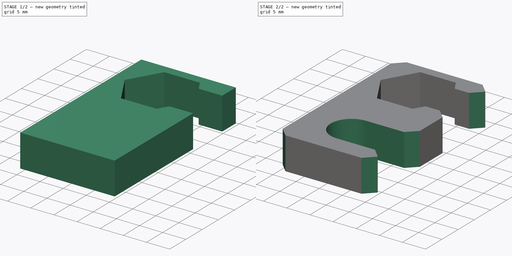
[diagram: build sequence overview — one tinted view per stage of 2, left to right]
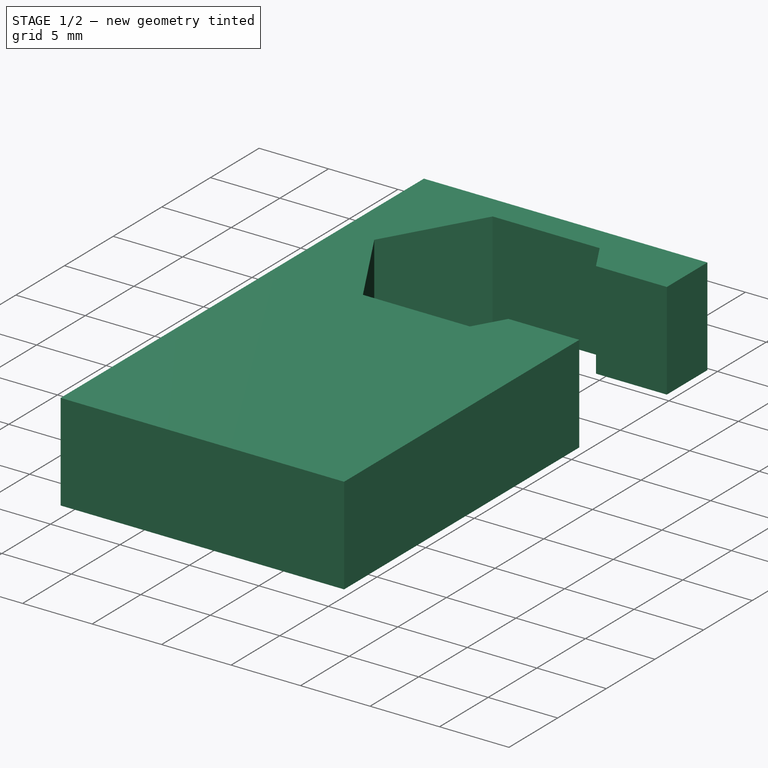
[diagram: stage 1 of 2 — iso view after this stage's code; geometry added in this stage tinted green]
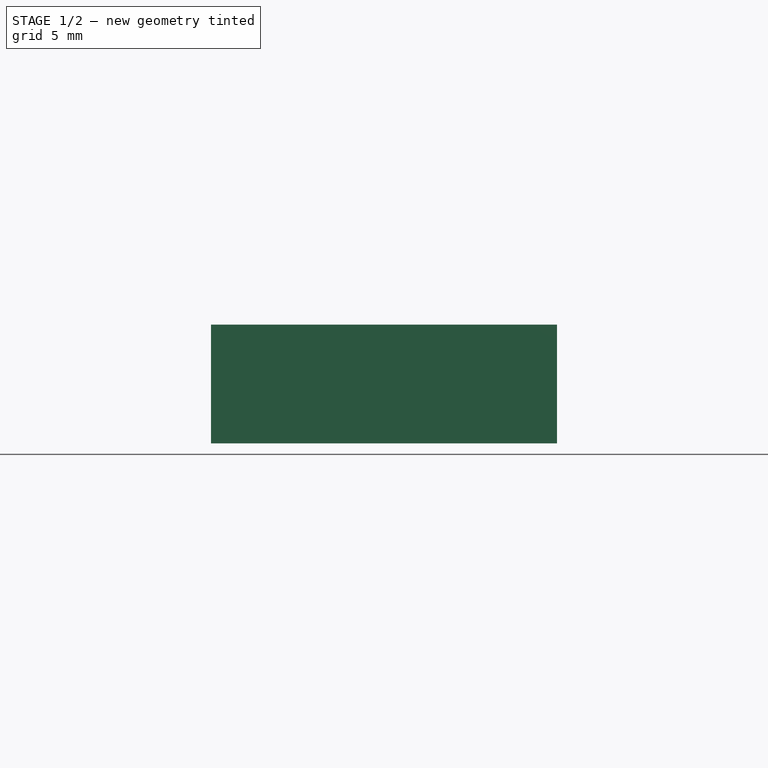
[diagram: stage 1 of 2 — front view after this stage's code; geometry added in this stage tinted green]
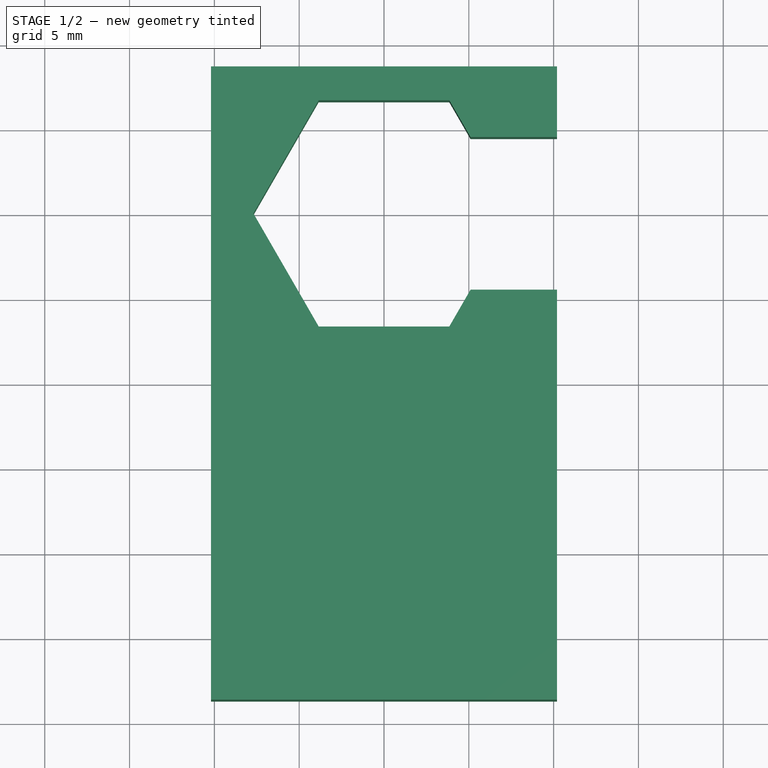
[diagram: stage 1 of 2 — top view after this stage's code; geometry added in this stage tinted green]
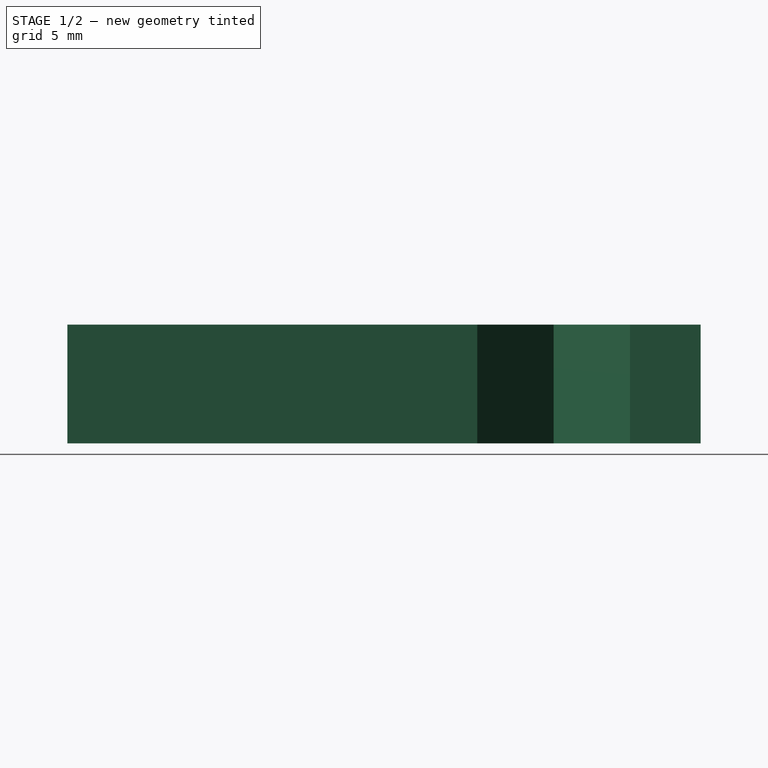
[diagram: stage 1 of 2 — right view after this stage's code; geometry added in this stage tinted green]
FCSTD DOCUMENT  (FreeCAD 0.15R4671 (Git))
Label: Y_axis_single_nut_blocker
License: CreativeCommons Attribution-ShareAlike
LicenseURL: http://creativecommons.org/licenses/by-sa/4.0/
objects: Sketcher::SketchObject×2, PartDesign::Pad×1, PartDesign::Pocket×1, PartDesign::Mirrored×1, PartDesign::Chamfer×1
note: 8 computed .brp shape members not serialized (recipe doc carries the construction recipe); baked Part::Feature solids carry a one-line shape summary decoded from their .brp

FEATURE [Sketcher::SketchObject] Sketch
  sketch-geometry (11):
    g0: LineSegment StartX=-10.2 StartY=18.6684 StartZ=0 EndX=10.2 EndY=18.6684 EndZ=0
    g1: LineSegment StartX=10.2 StartY=18.6684 StartZ=0 EndX=10.2 EndY=-18.6684 EndZ=0
    g2: LineSegment StartX=10.2 StartY=-18.6684 StartZ=0 EndX=-10.2 EndY=-18.6684 EndZ=0
    g3: LineSegment StartX=-10.2 StartY=-18.6684 StartZ=0 EndX=-10.2 EndY=18.6684 EndZ=0
    g4: LineSegment StartX=3.85 StartY=3.3316 StartZ=0 EndX=7.7 EndY=10 EndZ=0
    g5: LineSegment StartX=7.7 StartY=10 StartZ=0 EndX=3.85 EndY=16.6684 EndZ=0
    g6: LineSegment StartX=3.85 StartY=16.6684 StartZ=0 EndX=-3.85 EndY=16.6684 EndZ=0
    g7: LineSegment StartX=-3.85 StartY=16.6684 StartZ=0 EndX=-7.7 EndY=10 EndZ=0
    g8: LineSegment StartX=-7.7 StartY=10 StartZ=0 EndX=-3.85 EndY=3.3316 EndZ=0
    g9: LineSegment StartX=-3.85 StartY=3.3316 StartZ=0 EndX=3.85 EndY=3.3316 EndZ=0
    g10: Circle [constr] CenterX=0 CenterY=10 CenterZ=0 NormalX=0 NormalY=0 NormalZ=1 Radius=7.7
  constraints (28):
    c: Coincident(g0,g1)
    c: Coincident(g1,g2)
    c: Coincident(g2,g3)
    c: Coincident(g3,g0)
    c: Horizontal(g0)
    c: Horizontal(g2)
    c: Vertical(g1)
    c: Vertical(g3)
    c: Symmetric(g0,g1,g-1)
    c: Coincident(g4,g5)
    c: Coincident(g5,g6)
    c: Coincident(g6,g7)
    c: Coincident(g7,g8)
    c: Coincident(g8,g9)
    c: Coincident(g9,g4)
    c: Equal(g4, g5-g9) x5
    c: PointOnObject(g4,g10)
    c: PointOnObject(g5,g10)
    c: PointOnObject(g6,g10)
    c: PointOnObject(g7,g10)
    c: PointOnObject(g8,g10)
    c: PointOnObject(g9,g10)
    c: Horizontal(g6)
    c: PointOnObject(g10,g-2)
    c: DistanceY(g-1,g10) = 10
    c: DistanceX(g7,g10) = 7.7
    c: DistanceX(g7,g0) = -2.5
    c: DistanceY(g6,g0) = 2
FEATURE [PartDesign::Pad] Pad
  Length = 7
  Length2 = 100
  Sketch = -> Sketch
  Type = 0
FEATURE [Sketcher::SketchObject] Sketch001
  ExternalGeometry = -> [Pad]
  Placement = pos=(0,0,7) rot=(0,0,1;0rad)
  Support = -> Pad [Face12]
  sketch-geometry (5):
    g0: LineSegment [constr] StartX=0 StartY=10 StartZ=0 EndX=14 EndY=10 EndZ=0
    g1: LineSegment StartX=0 StartY=14.5 StartZ=0 EndX=14 EndY=14.5 EndZ=0
    g2: LineSegment StartX=14 StartY=14.5 StartZ=0 EndX=14 EndY=5.5 EndZ=0
    g3: LineSegment StartX=14 StartY=5.5 StartZ=0 EndX=0 EndY=5.5 EndZ=0
    g4: ArcOfCircle CenterX=0 CenterY=10 CenterZ=0 NormalX=0 NormalY=0 NormalZ=1 Radius=4.5 StartAngle=1.5708 EndAngle=4.71239
  constraints (16):
    c: PointOnObject(g4,g-2)
    c: Horizontal(g0)
    c: PointOnObject(g-4,g0)
    c: Coincident(g1,g2)
    c: Coincident(g2,g3)
    c: Horizontal(g1)
    c: Horizontal(g3)
    c: Vertical(g2)
    c: DistanceY(g2) = -9
    c: Coincident(g4,g1)
    c: Coincident(g4,g3)
    c: PointOnObject(g1,g-2)
    c: PointOnObject(g3,g-2)
    c: DistanceX(g1) = 14
    c: Symmetric(g1,g3,g0)
    c: PointOnObject(g0,g2)
FEATURE [PartDesign::Pocket] Pocket
  Length = 7
  Sketch = -> Sketch001
  Type = 0
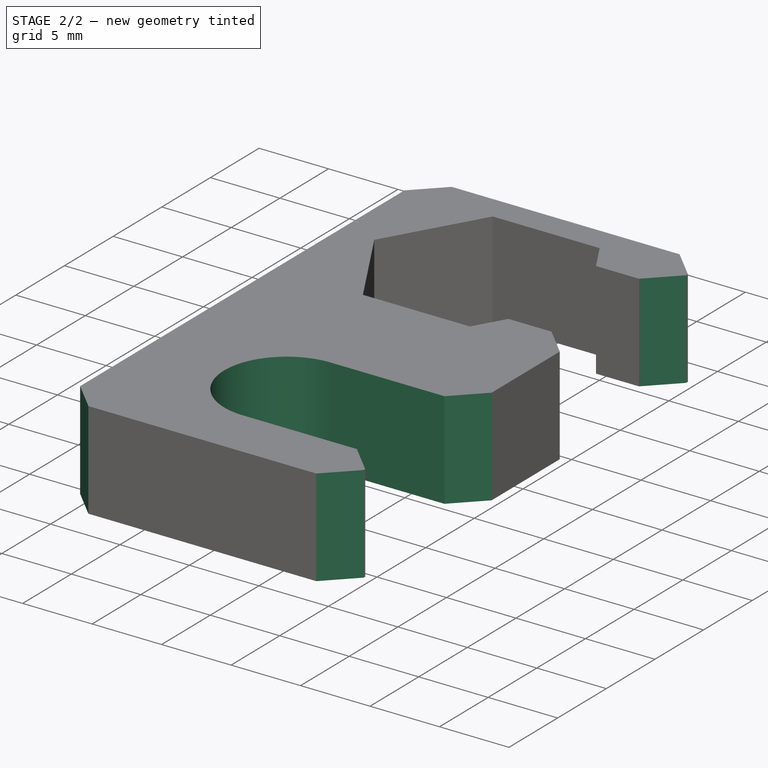
[diagram: stage 2 of 2 — iso view after this stage's code; geometry added in this stage tinted green]
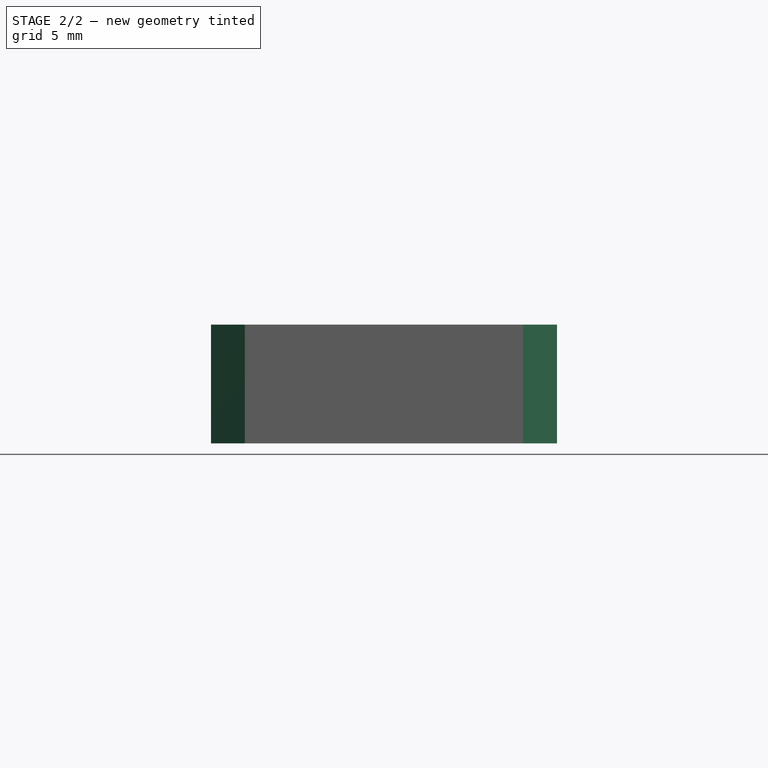
[diagram: stage 2 of 2 — front view after this stage's code; geometry added in this stage tinted green]
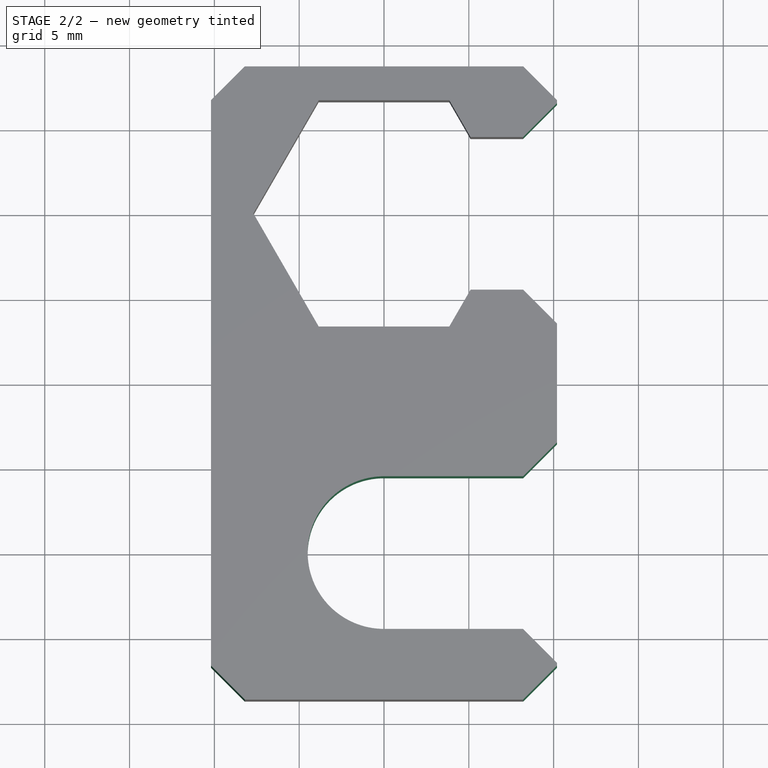
[diagram: stage 2 of 2 — top view after this stage's code; geometry added in this stage tinted green]
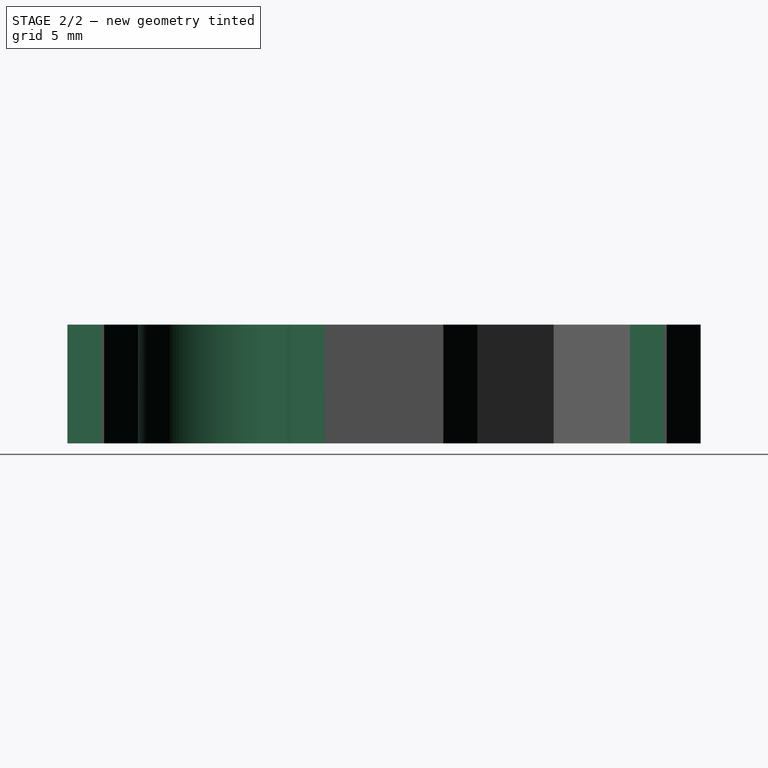
[diagram: stage 2 of 2 — right view after this stage's code; geometry added in this stage tinted green]
FEATURE [PartDesign::Mirrored] Mirrored
  MirrorPlane = -> Sketch001 [H_Axis]
  Originals = -> [Pocket]
FEATURE [PartDesign::Chamfer] Chamfer
  Base = -> Mirrored [Edge2,Edge9,Edge47,Edge48,Edge51,Edge39,Edge5,Edge1]
  Size = 2
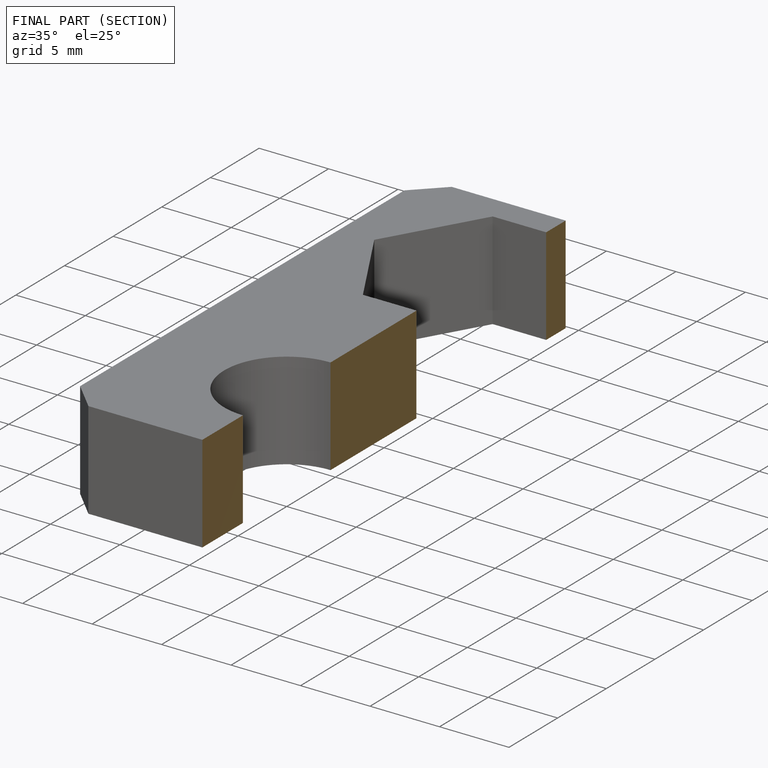
[diagram: finished part — half-section view (interior)]
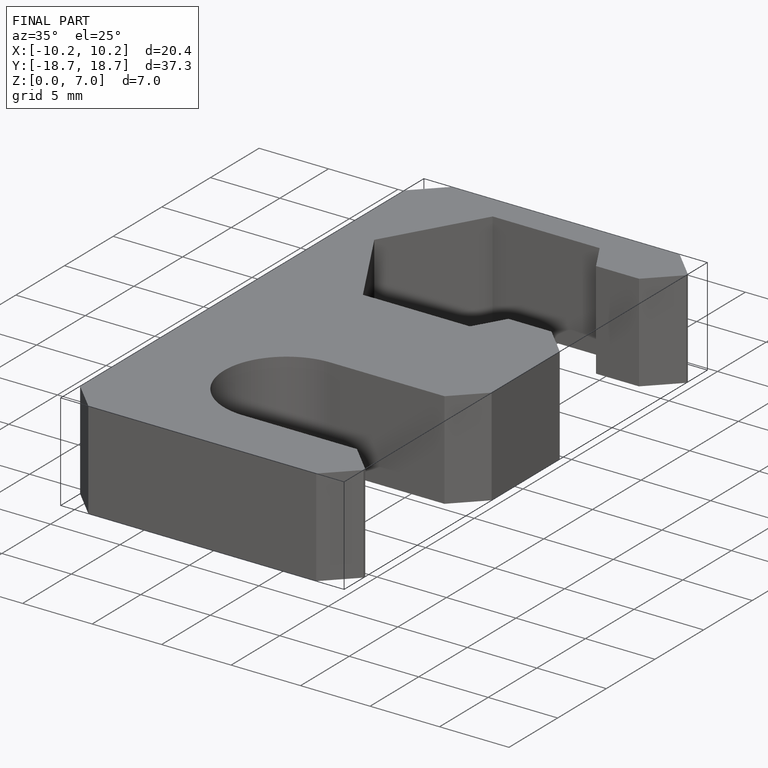
[diagram: finished part — iso view with bounding-box wireframe]
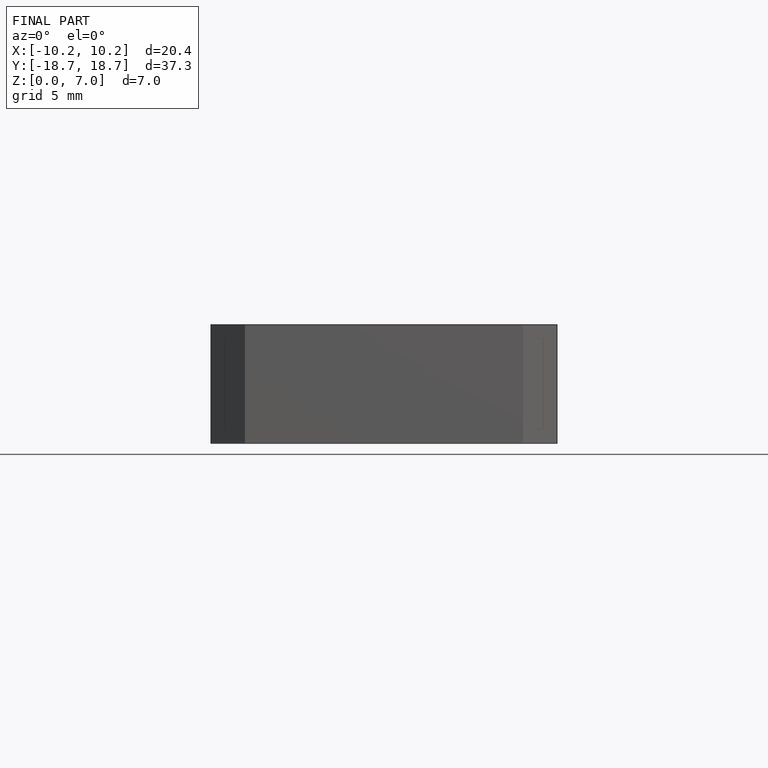
[diagram: finished part — front view with bounding-box wireframe]
